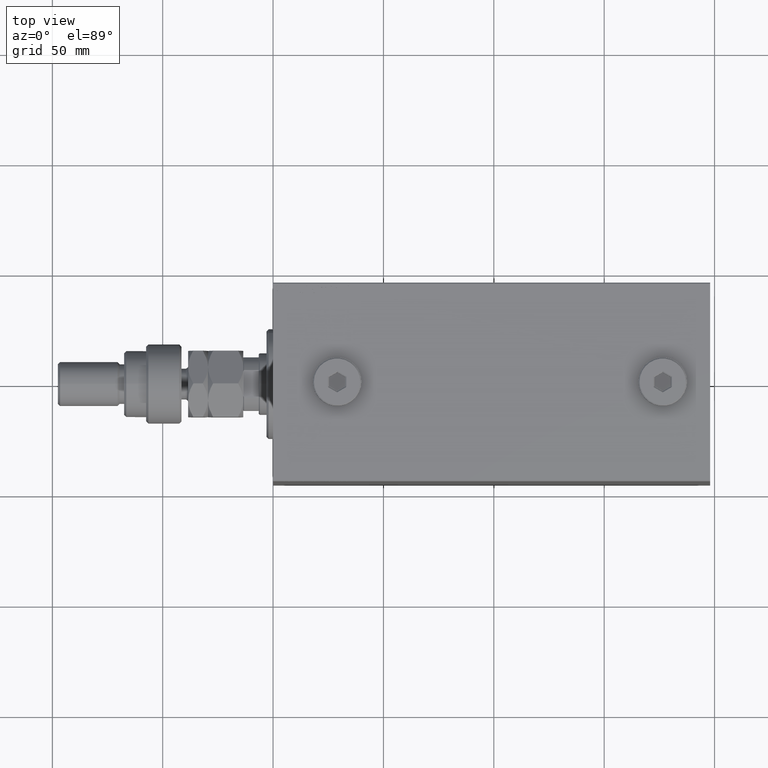
[diagram: clean part render]
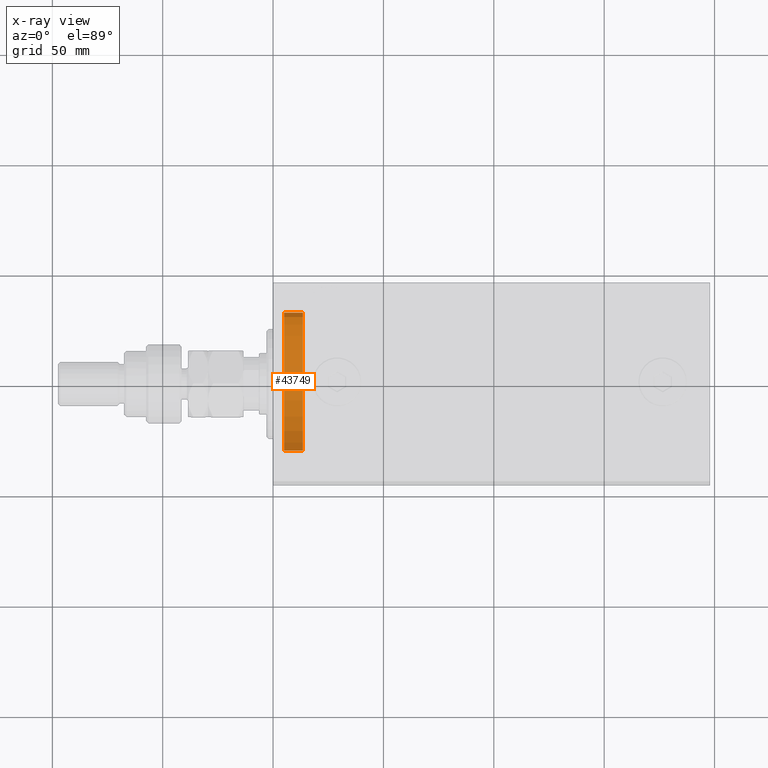
[diagram: x-ray — body ghosted, one internal face saturated and labeled with its STEP entity id]
A machine part, top view, then the same camera in x-ray: the body is ghosted and one INTERNAL B-rep face — a face not visible from any outside direction — is saturated and labeled: STEP entity #43749.
In plain terms, the highlighted cylindrical surface (partial cylindrical patch) has radius 32.5 mm, axis along (-1, 0, 0).
Its self-contained STEP definition (entity closure, byte-faithful):
#541 = EDGE_CURVE ( 'NONE', #31377, #45216, #25610, .T. ) ;
#1342 = VERTEX_POINT ( 'NONE', #22674 ) ;
#1460 = AXIS2_PLACEMENT_3D ( 'NONE', #36494, #44750, #18471 ) ;
#1469 = CARTESIAN_POINT ( 'NONE',  ( -13.50000000000000178, 3.980102097228898626E-15, 32.50000000000000000 ) ) ;
#3912 = CARTESIAN_POINT ( 'NONE',  ( -13.50000000000000178, 3.980102097228898626E-15, 32.50000000000000000 ) ) ;
#7179 = AXIS2_PLACEMENT_3D ( 'NONE', #29786, #33698, #11031 ) ;
#9006 = CARTESIAN_POINT ( 'NONE',  ( -13.50000000000000178, 0.000000000000000000, -32.50000000000000000 ) ) ;
#9830 = AXIS2_PLACEMENT_3D ( 'NONE', #25358, #46801, #29024 ) ;
#10970 = VECTOR ( 'NONE', #12897, 1000.000000000000000 ) ;
#11031 = DIRECTION ( 'NONE',  ( 0.000000000000000000, 0.000000000000000000, 1.000000000000000000 ) ) ;
#12897 = DIRECTION ( 'NONE',  ( 1.000000000000000000, -0.000000000000000000, -0.000000000000000000 ) ) ;
#16317 = LINE ( 'NONE', #9006, #10970 ) ;
#17115 = ORIENTED_EDGE ( 'NONE', *, *, #36516, .F. ) ;
#18471 = DIRECTION ( 'NONE',  ( 0.000000000000000000, 0.000000000000000000, -1.000000000000000000 ) ) ;
#18837 = CIRCLE ( 'NONE', #7179, 32.50000000000000000 ) ;
#21311 = CARTESIAN_POINT ( 'NONE',  ( -13.50000000000000178, 0.000000000000000000, -32.50000000000000000 ) ) ;
#21629 = EDGE_CURVE ( 'NONE', #27718, #1342, #16317, .T. ) ;
#22674 = CARTESIAN_POINT ( 'NONE',  ( -5.000000000000000000, 0.000000000000000000, -32.50000000000000000 ) ) ;
#23297 = EDGE_CURVE ( 'NONE', #45216, #1342, #18837, .T. ) ;
#23771 = EDGE_LOOP ( 'NONE', ( #17115, #32251, #26138, #45629 ) ) ;
#25358 = CARTESIAN_POINT ( 'NONE',  ( -13.50000000000000178, 0.000000000000000000, 0.000000000000000000 ) ) ;
#25610 = LINE ( 'NONE', #3912, #40225 ) ;
#26013 = CYLINDRICAL_SURFACE ( 'NONE', #1460, 32.50000000000000000 ) ;
#26138 = ORIENTED_EDGE ( 'NONE', *, *, #23297, .T. ) ;
#27710 = CIRCLE ( 'NONE', #9830, 32.50000000000000000 ) ;
#27718 = VERTEX_POINT ( 'NONE', #21311 ) ;
#28855 = CARTESIAN_POINT ( 'NONE',  ( -5.000000000000000000, 3.980102097228898626E-15, 32.50000000000000000 ) ) ;
#29024 = DIRECTION ( 'NONE',  ( 0.000000000000000000, 0.000000000000000000, 1.000000000000000000 ) ) ;
#29786 = CARTESIAN_POINT ( 'NONE',  ( -5.000000000000000000, 0.000000000000000000, 0.000000000000000000 ) ) ;
#31377 = VERTEX_POINT ( 'NONE', #1469 ) ;
#32251 = ORIENTED_EDGE ( 'NONE', *, *, #541, .T. ) ;
#33698 = DIRECTION ( 'NONE',  ( -1.000000000000000000, 0.000000000000000000, 0.000000000000000000 ) ) ;
#36494 = CARTESIAN_POINT ( 'NONE',  ( -13.50000000000000178, 0.000000000000000000, 0.000000000000000000 ) ) ;
#36516 = EDGE_CURVE ( 'NONE', #31377, #27718, #27710, .T. ) ;
#36575 = DIRECTION ( 'NONE',  ( 1.000000000000000000, -0.000000000000000000, -0.000000000000000000 ) ) ;
#40225 = VECTOR ( 'NONE', #36575, 1000.000000000000000 ) ;
#43749 = ADVANCED_FACE ( 'NONE', ( #47685 ), #26013, .T. ) ;
#44750 = DIRECTION ( 'NONE',  ( 1.000000000000000000, -0.000000000000000000, -0.000000000000000000 ) ) ;
#45216 = VERTEX_POINT ( 'NONE', #28855 ) ;
#45629 = ORIENTED_EDGE ( 'NONE', *, *, #21629, .F. ) ;
#46801 = DIRECTION ( 'NONE',  ( -1.000000000000000000, 0.000000000000000000, 0.000000000000000000 ) ) ;
#47685 = FACE_OUTER_BOUND ( 'NONE', #23771, .T. ) ;